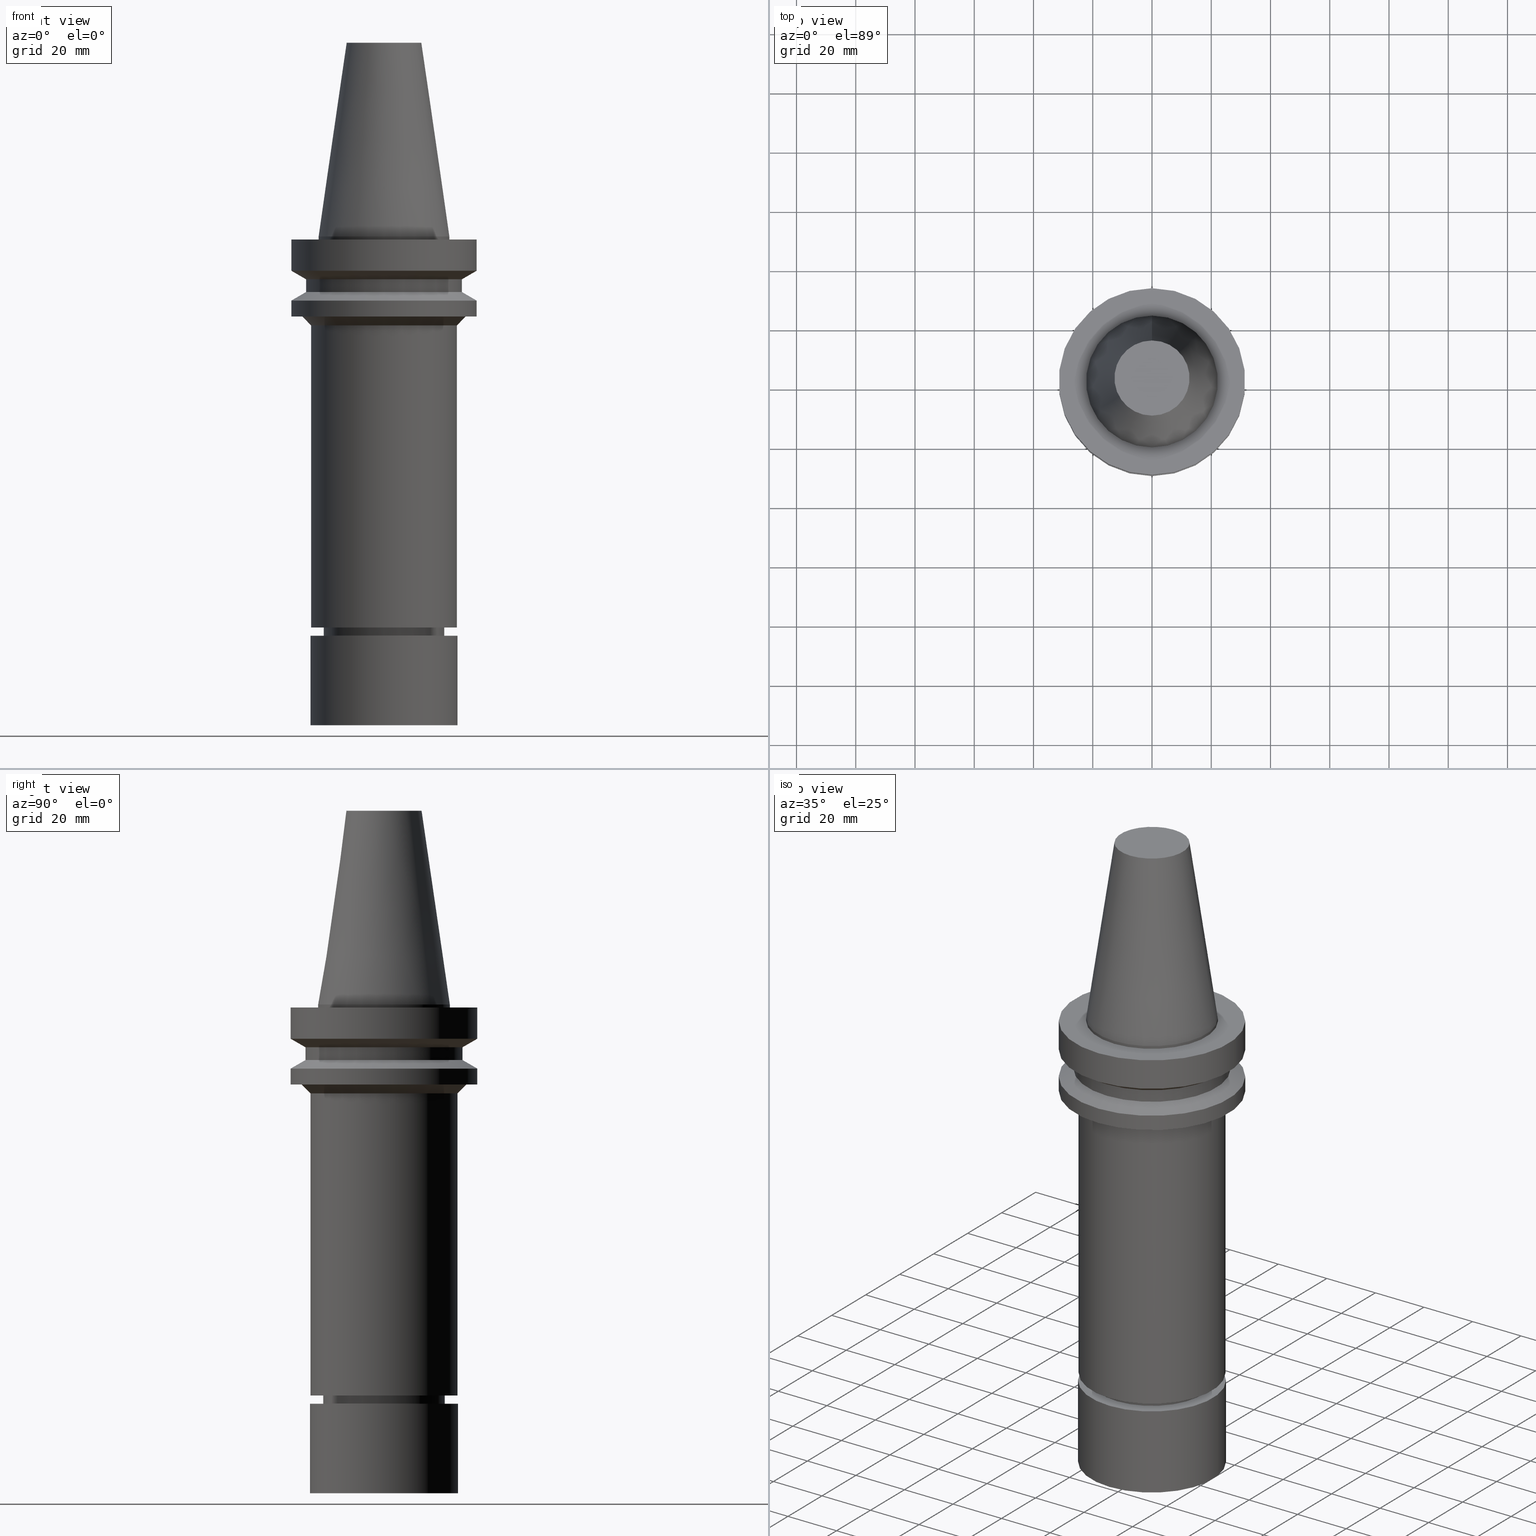
[diagram: canonical four-view strip — front | top / right | iso, engineering-drawing reading convention]
A machine part, canonical four-view strip (front | top / right | iso — engineering-drawing reading convention). The complete STEP part file that produces these views, byte-faithful:
ISO-10303-21;
HEADER;
FILE_DESCRIPTION((''),'1');
FILE_NAME('V:/90_\X2\53D65F9730C730FC30BF\X0\/00_\X2\6DE18DEF30C730FC30BF\X0\/ALL/BBT-BKUS\X2\FF76FF80FF9BFF78FF9E752852A05DE556F3\X0\201801/BBT40-MEGAER/BBT40-MEGAER32-165NL.stp','2018-02-07T02:39:20',(''),(''),'Spatial Interop R21 SP3','Kubotek KeyCreator 2011 V10.0.2 (22737)',' ');
FILE_SCHEMA(('automotive_design'));
ENDSEC;
DATA;
#1=MECHANICAL_DESIGN_GEOMETRIC_PRESENTATION_REPRESENTATION(' ',(#14,#15,#16,#17,#18,#19,#20,#21,#22,#23,#24,#25,#26,#27,#28,#29,#30,#31,#32,#33,#34,#35,#36,#37,#38,#39,#40,#41,#42,#43,#44,#45,#46,#47,#48,#49,#50,#51,#52,#53,#54,#55),#10);
#2=PRODUCT_DEFINITION_CONTEXT('',#56,'design');
#3=APPLICATION_PROTOCOL_DEFINITION('INTERNATIONAL STANDARD','automotive_design',1994,#56);
#4=PRODUCT_CATEGORY_RELATIONSHIP('NONE','NONE',#57,#58);
#5=SHAPE_DEFINITION_REPRESENTATION(#59,#60);
#6=PRODUCT_DEFINITION_CONTEXT('',#61,'design');
#7=APPLICATION_PROTOCOL_DEFINITION('INTERNATIONAL STANDARD','automotive_design',1994,#61);
#8=PRODUCT_CATEGORY_RELATIONSHIP('NONE','NONE',#62,#63);
#9=SHAPE_DEFINITION_REPRESENTATION(#64,#65);
#10= (GEOMETRIC_REPRESENTATION_CONTEXT(3)GLOBAL_UNCERTAINTY_ASSIGNED_CONTEXT((#68))GLOBAL_UNIT_ASSIGNED_CONTEXT((#70,#71,#72))REPRESENTATION_CONTEXT('NONE','WORKSPACE'));
#14=STYLED_ITEM('',(#74),#75);
#15=STYLED_ITEM('',(#76),#77);
#16=STYLED_ITEM('',(#78),#79);
#17=STYLED_ITEM('',(#80,#81),#82);
#18=STYLED_ITEM('',(#83,#84),#85);
#19=STYLED_ITEM('',(#86,#87),#88);
#20=STYLED_ITEM('',(#89),#90);
#21=STYLED_ITEM('',(#91),#92);
#22=STYLED_ITEM('',(#93),#94);
#23=STYLED_ITEM('',(#95,#96),#97);
#24=STYLED_ITEM('',(#98,#99),#100);
#25=STYLED_ITEM('',(#101,#102),#103);
#26=STYLED_ITEM('',(#104,#105),#106);
#27=STYLED_ITEM('',(#107),#108);
#28=STYLED_ITEM('',(#109,#110),#111);
#29=STYLED_ITEM('',(#112),#113);
#30=STYLED_ITEM('',(#114),#115);
#31=STYLED_ITEM('',(#116,#117),#118);
#32=STYLED_ITEM('',(#119,#120),#121);
#33=STYLED_ITEM('',(#122),#123);
#34=STYLED_ITEM('',(#124,#125),#126);
#35=STYLED_ITEM('',(#127),#128);
#36=STYLED_ITEM('',(#129,#130),#131);
#37=STYLED_ITEM('',(#132,#133),#134);
#38=STYLED_ITEM('',(#135),#136);
#39=STYLED_ITEM('',(#137,#138),#139);
#40=STYLED_ITEM('',(#140),#141);
#41=STYLED_ITEM('',(#142),#143);
#42=STYLED_ITEM('',(#144),#145);
#43=STYLED_ITEM('',(#146),#147);
#44=STYLED_ITEM('',(#148,#149),#150);
#45=STYLED_ITEM('',(#151),#152);
#46=STYLED_ITEM('',(#153,#154),#155);
#47=STYLED_ITEM('',(#156,#157),#158);
#48=STYLED_ITEM('',(#159,#160),#161);
#49=STYLED_ITEM('',(#162,#163),#164);
#50=STYLED_ITEM('',(#165,#166),#167);
#51=STYLED_ITEM('',(#168,#169),#170);
#52=STYLED_ITEM('',(#171),#172);
#53=STYLED_ITEM('',(#173,#174),#175);
#54=STYLED_ITEM('',(#176,#177),#178);
#55=STYLED_ITEM('',(#179),#180);
#56=APPLICATION_CONTEXT(' ');
#57=PRODUCT_CATEGORY('part','NONE');
#58=PRODUCT_RELATED_PRODUCT_CATEGORY('detail',' ',(#181));
#59=PRODUCT_DEFINITION_SHAPE('NONE','NONE',#182);
#60=ADVANCED_BREP_SHAPE_REPRESENTATION('Unnamed[1]',(#118,#183),#10);
#61=APPLICATION_CONTEXT(' ');
#62=PRODUCT_CATEGORY('part','NONE');
#63=PRODUCT_RELATED_PRODUCT_CATEGORY('detail',' ',(#184));
#64=PRODUCT_DEFINITION_SHAPE('NONE','NONE',#185);
#65=ADVANCED_BREP_SHAPE_REPRESENTATION('Unnamed[1]',(#158,#186),#10);
#68=UNCERTAINTY_MEASURE_WITH_UNIT(LENGTH_MEASURE(1.0E-006),#70,'','');
#70= (CONVERSION_BASED_UNIT('MILLIMETRE',#189)LENGTH_UNIT()NAMED_UNIT(#192));
#71= (NAMED_UNIT(#194)PLANE_ANGLE_UNIT()SI_UNIT($,.RADIAN.));
#72= (NAMED_UNIT(#194)SOLID_ANGLE_UNIT()SI_UNIT($,.STERADIAN.));
#74=PRESENTATION_STYLE_ASSIGNMENT((#200));
#75=EDGE_CURVE('Unnamed[1]',#201,#201,#202,.T.);
#76=PRESENTATION_STYLE_ASSIGNMENT((#203));
#77=EDGE_CURVE('Unnamed[1]',#204,#204,#205,.T.);
#78=PRESENTATION_STYLE_ASSIGNMENT((#206));
#79=EDGE_CURVE('Unnamed[1]',#207,#207,#208,.T.);
#80=PRESENTATION_STYLE_ASSIGNMENT((#209));
#81=PRESENTATION_STYLE_ASSIGNMENT((#210));
#82=ADVANCED_FACE('Unnamed[1]',(#211),#212,.T.);
#83=PRESENTATION_STYLE_ASSIGNMENT((#213));
#84=PRESENTATION_STYLE_ASSIGNMENT((#214));
#85=ADVANCED_FACE('Unnamed[1]',(#215,#216),#217,.T.);
#86=PRESENTATION_STYLE_ASSIGNMENT((#218));
#87=PRESENTATION_STYLE_ASSIGNMENT((#219));
#88=ADVANCED_FACE('Unnamed[1]',(#220,#221),#222,.T.);
#89=PRESENTATION_STYLE_ASSIGNMENT((#223));
#90=EDGE_CURVE('Unnamed[1]',#224,#224,#225,.T.);
#91=PRESENTATION_STYLE_ASSIGNMENT((#226));
#92=EDGE_CURVE('Unnamed[1]',#227,#227,#228,.T.);
#93=PRESENTATION_STYLE_ASSIGNMENT((#229));
#94=EDGE_CURVE('Unnamed[1]',#230,#230,#231,.T.);
#95=PRESENTATION_STYLE_ASSIGNMENT((#232));
#96=PRESENTATION_STYLE_ASSIGNMENT((#233));
#97=ADVANCED_FACE('Unnamed[1]',(#234,#235),#236,.T.);
#98=PRESENTATION_STYLE_ASSIGNMENT((#237));
#99=PRESENTATION_STYLE_ASSIGNMENT((#238));
#100=ADVANCED_FACE('Unnamed[1]',(#239),#240,.T.);
#101=PRESENTATION_STYLE_ASSIGNMENT((#241));
#102=PRESENTATION_STYLE_ASSIGNMENT((#242));
#103=ADVANCED_FACE('Unnamed[1]',(#243,#244),#245,.T.);
#104=PRESENTATION_STYLE_ASSIGNMENT((#246));
#105=PRESENTATION_STYLE_ASSIGNMENT((#247));
#106=ADVANCED_FACE('Unnamed[1]',(#248),#249,.T.);
#107=PRESENTATION_STYLE_ASSIGNMENT((#250));
#108=EDGE_CURVE('Unnamed[1]',#251,#251,#252,.T.);
#109=PRESENTATION_STYLE_ASSIGNMENT((#253));
#110=PRESENTATION_STYLE_ASSIGNMENT((#254));
#111=ADVANCED_FACE('Unnamed[1]',(#255,#256),#257,.T.);
#112=PRESENTATION_STYLE_ASSIGNMENT((#258));
#113=EDGE_CURVE('Unnamed[1]',#259,#259,#260,.T.);
#114=PRESENTATION_STYLE_ASSIGNMENT((#261));
#115=EDGE_CURVE('Unnamed[1]',#262,#262,#263,.T.);
#116=PRESENTATION_STYLE_ASSIGNMENT((#264));
#117=PRESENTATION_STYLE_ASSIGNMENT((#265));
#118=MANIFOLD_SOLID_BREP('Unnamed[1]',#266);
#119=PRESENTATION_STYLE_ASSIGNMENT((#267));
#120=PRESENTATION_STYLE_ASSIGNMENT((#268));
#121=ADVANCED_FACE('Unnamed[1]',(#269,#270),#271,.T.);
#122=PRESENTATION_STYLE_ASSIGNMENT((#272));
#123=EDGE_CURVE('Unnamed[1]',#273,#273,#274,.T.);
#124=PRESENTATION_STYLE_ASSIGNMENT((#275));
#125=PRESENTATION_STYLE_ASSIGNMENT((#276));
#126=ADVANCED_FACE('Unnamed[1]',(#277),#278,.T.);
#127=PRESENTATION_STYLE_ASSIGNMENT((#279));
#128=EDGE_CURVE('Unnamed[1]',#280,#280,#281,.T.);
#129=PRESENTATION_STYLE_ASSIGNMENT((#282));
#130=PRESENTATION_STYLE_ASSIGNMENT((#283));
#131=ADVANCED_FACE('Unnamed[1]',(#284,#285),#286,.T.);
#132=PRESENTATION_STYLE_ASSIGNMENT((#287));
#133=PRESENTATION_STYLE_ASSIGNMENT((#288));
#134=ADVANCED_FACE('Unnamed[1]',(#289,#290),#291,.T.);
#135=PRESENTATION_STYLE_ASSIGNMENT((#292));
#136=EDGE_CURVE('Unnamed[1]',#293,#293,#294,.T.);
#137=PRESENTATION_STYLE_ASSIGNMENT((#295));
#138=PRESENTATION_STYLE_ASSIGNMENT((#296));
#139=ADVANCED_FACE('Unnamed[1]',(#297,#298),#299,.T.);
#140=PRESENTATION_STYLE_ASSIGNMENT((#300));
#141=EDGE_CURVE('Unnamed[1]',#301,#301,#302,.T.);
#142=PRESENTATION_STYLE_ASSIGNMENT((#303));
#143=EDGE_CURVE('Unnamed[1]',#304,#304,#305,.T.);
#144=PRESENTATION_STYLE_ASSIGNMENT((#306));
#145=EDGE_CURVE('Unnamed[1]',#307,#307,#308,.T.);
#146=PRESENTATION_STYLE_ASSIGNMENT((#309));
#147=EDGE_CURVE('Unnamed[1]',#310,#310,#311,.T.);
#148=PRESENTATION_STYLE_ASSIGNMENT((#312));
#149=PRESENTATION_STYLE_ASSIGNMENT((#313));
#150=ADVANCED_FACE('Unnamed[1]',(#314,#315),#316,.T.);
#151=PRESENTATION_STYLE_ASSIGNMENT((#317));
#152=EDGE_CURVE('Unnamed[1]',#318,#318,#319,.T.);
#153=PRESENTATION_STYLE_ASSIGNMENT((#320));
#154=PRESENTATION_STYLE_ASSIGNMENT((#321));
#155=ADVANCED_FACE('Unnamed[1]',(#322,#323),#324,.T.);
#156=PRESENTATION_STYLE_ASSIGNMENT((#325));
#157=PRESENTATION_STYLE_ASSIGNMENT((#326));
#158=MANIFOLD_SOLID_BREP('Unnamed[1]',#327);
#159=PRESENTATION_STYLE_ASSIGNMENT((#328));
#160=PRESENTATION_STYLE_ASSIGNMENT((#329));
#161=ADVANCED_FACE('Unnamed[1]',(#330,#331),#332,.T.);
#162=PRESENTATION_STYLE_ASSIGNMENT((#333));
#163=PRESENTATION_STYLE_ASSIGNMENT((#334));
#164=ADVANCED_FACE('Unnamed[1]',(#335,#336),#337,.T.);
#165=PRESENTATION_STYLE_ASSIGNMENT((#338));
#166=PRESENTATION_STYLE_ASSIGNMENT((#339));
#167=ADVANCED_FACE('Unnamed[1]',(#340,#341),#342,.F.);
#168=PRESENTATION_STYLE_ASSIGNMENT((#343));
#169=PRESENTATION_STYLE_ASSIGNMENT((#344));
#170=ADVANCED_FACE('Unnamed[1]',(#345,#346),#347,.T.);
#171=PRESENTATION_STYLE_ASSIGNMENT((#348));
#172=EDGE_CURVE('Unnamed[1]',#349,#349,#350,.T.);
#173=PRESENTATION_STYLE_ASSIGNMENT((#351));
#174=PRESENTATION_STYLE_ASSIGNMENT((#352));
#175=ADVANCED_FACE('Unnamed[1]',(#353,#354),#355,.T.);
#176=PRESENTATION_STYLE_ASSIGNMENT((#356));
#177=PRESENTATION_STYLE_ASSIGNMENT((#357));
#178=ADVANCED_FACE('Unnamed[1]',(#358,#359),#360,.T.);
#179=PRESENTATION_STYLE_ASSIGNMENT((#361));
#180=EDGE_CURVE('Unnamed[1]',#362,#362,#363,.T.);
#181=PRODUCT('Unnamed[1]','Unnamed[1]','PART-Unnamed[1]-DESC',(#364));
#182=PRODUCT_DEFINITION('NONE','NONE',#365,#2);
#183=AXIS2_PLACEMENT_3D('',#366,#367,#368);
#184=PRODUCT('Unnamed[1]','Unnamed[1]','PART-Unnamed[1]-DESC',(#369));
#185=PRODUCT_DEFINITION('NONE','NONE',#370,#6);
#186=AXIS2_PLACEMENT_3D('',#371,#372,#373);
#189=LENGTH_MEASURE_WITH_UNIT(LENGTH_MEASURE(1.0),#374);
#192=DIMENSIONAL_EXPONENTS(1.0,0.0,0.0,0.0,0.0,0.0,0.0);
#194=DIMENSIONAL_EXPONENTS(0.0,0.0,0.0,0.0,0.0,0.0,0.0);
#200=CURVE_STYLE('',#375,POSITIVE_LENGTH_MEASURE(1000.0),#376);
#201=VERTEX_POINT('',#377);
#202=CIRCLE('',#378,24.8000000000002);
#203=CURVE_STYLE('',#379,POSITIVE_LENGTH_MEASURE(1000.0),#380);
#204=VERTEX_POINT('',#381);
#205=CIRCLE('',#382,20.499999999991);
#206=CURVE_STYLE('',#383,POSITIVE_LENGTH_MEASURE(1000.0),#384);
#207=VERTEX_POINT('',#385);
#208=CIRCLE('',#386,22.225);
#209=SURFACE_STYLE_USAGE(.BOTH.,#387);
#210=CURVE_STYLE('',#388,POSITIVE_LENGTH_MEASURE(1000.0),#389);
#211=FACE_OUTER_BOUND('',#390,.T.);
#212=PLANE('',#391);
#213=SURFACE_STYLE_USAGE(.BOTH.,#392);
#214=CURVE_STYLE('',#393,POSITIVE_LENGTH_MEASURE(1000.0),#394);
#215=FACE_BOUND('',#395,.T.);
#216=FACE_BOUND('',#396,.T.);
#217=CYLINDRICAL_SURFACE('',#397,31.5);
#218=SURFACE_STYLE_USAGE(.BOTH.,#398);
#219=CURVE_STYLE('',#399,POSITIVE_LENGTH_MEASURE(1000.0),#400);
#220=FACE_BOUND('',#401,.T.);
#221=FACE_OUTER_BOUND('',#402,.T.);
#222=PLANE('',#403);
#223=CURVE_STYLE('',#404,POSITIVE_LENGTH_MEASURE(1000.0),#405);
#224=VERTEX_POINT('',#406);
#225=CIRCLE('',#407,31.4999999999996);
#226=CURVE_STYLE('',#408,POSITIVE_LENGTH_MEASURE(1000.0),#409);
#227=VERTEX_POINT('',#410);
#228=CIRCLE('',#411,24.7999999999997);
#229=CURVE_STYLE('',#412,POSITIVE_LENGTH_MEASURE(1000.0),#413);
#230=VERTEX_POINT('',#414);
#231=CIRCLE('',#415,24.9999999999999);
#232=SURFACE_STYLE_USAGE(.BOTH.,#416);
#233=CURVE_STYLE('',#417,POSITIVE_LENGTH_MEASURE(1000.0),#418);
#234=FACE_OUTER_BOUND('',#419,.T.);
#235=FACE_BOUND('',#420,.T.);
#236=PLANE('',#421);
#237=SURFACE_STYLE_USAGE(.BOTH.,#422);
#238=CURVE_STYLE('',#423,POSITIVE_LENGTH_MEASURE(1000.0),#424);
#239=FACE_OUTER_BOUND('',#425,.T.);
#240=PLANE('',#426);
#241=SURFACE_STYLE_USAGE(.BOTH.,#427);
#242=CURVE_STYLE('',#428,POSITIVE_LENGTH_MEASURE(1000.0),#429);
#243=FACE_BOUND('',#430,.T.);
#244=FACE_BOUND('',#431,.T.);
#245=CONICAL_SURFACE('',#432,17.45625,0.144812498238936);
#246=SURFACE_STYLE_USAGE(.BOTH.,#433);
#247=CURVE_STYLE('',#434,POSITIVE_LENGTH_MEASURE(1000.0),#435);
#248=FACE_OUTER_BOUND('',#436,.T.);
#249=PLANE('',#437);
#250=CURVE_STYLE('',#438,POSITIVE_LENGTH_MEASURE(1000.0),#439);
#251=VERTEX_POINT('',#440);
#252=CIRCLE('',#441,24.9999999999999);
#253=SURFACE_STYLE_USAGE(.BOTH.,#442);
#254=CURVE_STYLE('',#443,POSITIVE_LENGTH_MEASURE(1000.0),#444);
#255=FACE_BOUND('',#445,.T.);
#256=FACE_BOUND('',#446,.T.);
#257=CYLINDRICAL_SURFACE('',#447,24.7999999999999);
#258=CURVE_STYLE('',#448,POSITIVE_LENGTH_MEASURE(1000.0),#449);
#259=VERTEX_POINT('',#450);
#260=CIRCLE('',#451,27.8000000024396);
#261=CURVE_STYLE('',#452,POSITIVE_LENGTH_MEASURE(1000.0),#453);
#262=VERTEX_POINT('',#454);
#263=CIRCLE('',#455,12.6875000000001);
#264=SURFACE_STYLE_USAGE(.BOTH.,#456);
#265=CURVE_STYLE('',#457,POSITIVE_LENGTH_MEASURE(1000.0),#458);
#266=CLOSED_SHELL('',(#126,#103,#155,#97,#85,#139,#175,#150,#131,#167,#170,#111,#88,#164,#134,#161,#178,#106));
#267=SURFACE_STYLE_USAGE(.BOTH.,#459);
#268=CURVE_STYLE('',#460,POSITIVE_LENGTH_MEASURE(1000.0),#461);
#269=FACE_BOUND('',#462,.T.);
#270=FACE_BOUND('',#463,.T.);
#271=CYLINDRICAL_SURFACE('',#464,24.9999999999999);
#272=CURVE_STYLE('',#465,POSITIVE_LENGTH_MEASURE(1000.0),#466);
#273=VERTEX_POINT('',#467);
#274=CIRCLE('',#468,31.5000000000003);
#275=SURFACE_STYLE_USAGE(.BOTH.,#469);
#276=CURVE_STYLE('',#470,POSITIVE_LENGTH_MEASURE(1000.0),#471);
#277=FACE_OUTER_BOUND('',#472,.T.);
#278=PLANE('',#473);
#279=CURVE_STYLE('',#474,POSITIVE_LENGTH_MEASURE(1000.0),#475);
#280=VERTEX_POINT('',#476);
#281=CIRCLE('',#477,18.8999999999996);
#282=SURFACE_STYLE_USAGE(.BOTH.,#478);
#283=CURVE_STYLE('',#479,POSITIVE_LENGTH_MEASURE(1000.0),#480);
#284=FACE_BOUND('',#481,.T.);
#285=FACE_BOUND('',#482,.T.);
#286=CYLINDRICAL_SURFACE('',#483,31.5000000000005);
#287=SURFACE_STYLE_USAGE(.BOTH.,#484);
#288=CURVE_STYLE('',#485,POSITIVE_LENGTH_MEASURE(1000.0),#486);
#289=FACE_BOUND('',#487,.T.);
#290=FACE_BOUND('',#488,.T.);
#291=CONICAL_SURFACE('',#489,20.2500000000005,1.04719755120255);
#292=CURVE_STYLE('',#490,POSITIVE_LENGTH_MEASURE(1000.0),#491);
#293=VERTEX_POINT('',#492);
#294=CIRCLE('',#493,31.5000000000003);
#295=SURFACE_STYLE_USAGE(.BOTH.,#494);
#296=CURVE_STYLE('',#495,POSITIVE_LENGTH_MEASURE(1000.0),#496);
#297=FACE_BOUND('',#497,.T.);
#298=FACE_BOUND('',#498,.T.);
#299=CONICAL_SURFACE('',#499,28.9999999999998,1.04719755119657);
#300=CURVE_STYLE('',#500,POSITIVE_LENGTH_MEASURE(1000.0),#501);
#301=VERTEX_POINT('',#502);
#302=CIRCLE('',#503,26.5);
#303=CURVE_STYLE('',#504,POSITIVE_LENGTH_MEASURE(1000.0),#505);
#304=VERTEX_POINT('',#506);
#305=CIRCLE('',#507,20.5000000000011);
#306=CURVE_STYLE('',#508,POSITIVE_LENGTH_MEASURE(1000.0),#509);
#307=VERTEX_POINT('',#510);
#308=CIRCLE('',#511,22.225);
#309=CURVE_STYLE('',#512,POSITIVE_LENGTH_MEASURE(1000.0),#513);
#310=VERTEX_POINT('',#514);
#311=CIRCLE('',#515,19.9999999999999);
#312=SURFACE_STYLE_USAGE(.BOTH.,#516);
#313=CURVE_STYLE('',#517,POSITIVE_LENGTH_MEASURE(1000.0),#518);
#314=FACE_BOUND('',#519,.T.);
#315=FACE_BOUND('',#520,.T.);
#316=CONICAL_SURFACE('',#521,29.0000000000003,1.04719755119651);
#317=CURVE_STYLE('',#522,POSITIVE_LENGTH_MEASURE(1000.0),#523);
#318=VERTEX_POINT('',#524);
#319=CIRCLE('',#525,20.0);
#320=SURFACE_STYLE_USAGE(.BOTH.,#526);
#321=CURVE_STYLE('',#527,POSITIVE_LENGTH_MEASURE(1000.0),#528);
#322=FACE_BOUND('',#529,.T.);
#323=FACE_BOUND('',#530,.T.);
#324=CYLINDRICAL_SURFACE('',#531,22.225);
#325=SURFACE_STYLE_USAGE(.BOTH.,#532);
#326=CURVE_STYLE('',#533,POSITIVE_LENGTH_MEASURE(1000.0),#534);
#327=CLOSED_SHELL('',(#82,#100,#121));
#328=SURFACE_STYLE_USAGE(.BOTH.,#535);
#329=CURVE_STYLE('',#536,POSITIVE_LENGTH_MEASURE(1000.0),#537);
#330=FACE_BOUND('',#538,.T.);
#331=FACE_BOUND('',#539,.T.);
#332=CYLINDRICAL_SURFACE('',#540,19.9999999999999);
#333=SURFACE_STYLE_USAGE(.BOTH.,#541);
#334=CURVE_STYLE('',#542,POSITIVE_LENGTH_MEASURE(1000.0),#543);
#335=FACE_BOUND('',#544,.T.);
#336=FACE_BOUND('',#545,.T.);
#337=CYLINDRICAL_SURFACE('',#546,20.499999999996);
#338=SURFACE_STYLE_USAGE(.BOTH.,#547);
#339=CURVE_STYLE('',#548,POSITIVE_LENGTH_MEASURE(1000.0),#549);
#340=FACE_BOUND('',#550,.T.);
#341=FACE_BOUND('',#551,.T.);
#342=CONICAL_SURFACE('',#552,29.65000000122,1.57075486116235);
#343=SURFACE_STYLE_USAGE(.BOTH.,#553);
#344=CURVE_STYLE('',#554,POSITIVE_LENGTH_MEASURE(1000.0),#555);
#345=FACE_BOUND('',#556,.T.);
#346=FACE_BOUND('',#557,.T.);
#347=CONICAL_SURFACE('',#558,26.3000000012197,0.785398163374261);
#348=CURVE_STYLE('',#559,POSITIVE_LENGTH_MEASURE(1000.0),#560);
#349=VERTEX_POINT('',#561);
#350=CIRCLE('',#562,31.5000000000006);
#351=SURFACE_STYLE_USAGE(.BOTH.,#563);
#352=CURVE_STYLE('',#564,POSITIVE_LENGTH_MEASURE(1000.0),#565);
#353=FACE_BOUND('',#566,.T.);
#354=FACE_BOUND('',#567,.T.);
#355=CYLINDRICAL_SURFACE('',#568,26.4999999999997);
#356=SURFACE_STYLE_USAGE(.BOTH.,#569);
#357=CURVE_STYLE('',#570,POSITIVE_LENGTH_MEASURE(1000.0),#571);
#358=FACE_BOUND('',#572,.T.);
#359=FACE_BOUND('',#573,.T.);
#360=CONICAL_SURFACE('',#574,19.4499999999998,0.523598775598222);
#361=CURVE_STYLE('',#575,POSITIVE_LENGTH_MEASURE(1000.0),#576);
#362=VERTEX_POINT('',#577);
#363=CIRCLE('',#578,26.4999999999994);
#364=PRODUCT_CONTEXT('',#56,'mechanical');
#365=PRODUCT_DEFINITION_FORMATION_WITH_SPECIFIED_SOURCE(' ','NONE',#181,.NOT_KNOWN.);
#366=CARTESIAN_POINT('',(0.0,0.0,0.0));
#367=DIRECTION('',(0.0,0.0,1.0));
#368=DIRECTION('',(1.0,0.0,0.0));
#369=PRODUCT_CONTEXT('',#61,'mechanical');
#370=PRODUCT_DEFINITION_FORMATION_WITH_SPECIFIED_SOURCE(' ','NONE',#184,.NOT_KNOWN.);
#371=CARTESIAN_POINT('',(0.0,0.0,0.0));
#372=DIRECTION('',(0.0,0.0,1.0));
#373=DIRECTION('',(1.0,0.0,0.0));
#374= (NAMED_UNIT(#192)LENGTH_UNIT()SI_UNIT(.MILLI.,.METRE.));
#375=DRAUGHTING_PRE_DEFINED_CURVE_FONT('continuous');
#376=COLOUR_RGB('',0.0,1.0,0.0);
#377=CARTESIAN_POINT('',(8.08267852271585E-015,24.8000000000003,-132.000157569404));
#378=AXIS2_PLACEMENT_3D('',#580,#581,#582);
#379=DRAUGHTING_PRE_DEFINED_CURVE_FONT('continuous');
#380=COLOUR_RGB('',0.0,1.0,0.0);
#381=CARTESIAN_POINT('',(8.08267852271587E-015,20.4999999999911,-132.000157569404));
#382=AXIS2_PLACEMENT_3D('',#583,#584,#585);
#383=DRAUGHTING_PRE_DEFINED_CURVE_FONT('continuous');
#384=COLOUR_RGB('',0.0,1.0,0.0);
#385=CARTESIAN_POINT('',(1.71319921032766E-029,22.2250000000001,-2.8153873565375E-013));
#386=AXIS2_PLACEMENT_3D('',#586,#587,#588);
#387=SURFACE_SIDE_STYLE('',(#589));
#388=DRAUGHTING_PRE_DEFINED_CURVE_FONT('continuous');
#389=COLOUR_RGB('',0.0,1.0,0.0);
#390=EDGE_LOOP('',(#590));
#391=AXIS2_PLACEMENT_3D('',#591,#592,#593);
#392=SURFACE_SIDE_STYLE('',(#594));
#393=DRAUGHTING_PRE_DEFINED_CURVE_FONT('continuous');
#394=COLOUR_RGB('',0.0,1.0,0.0);
#395=EDGE_LOOP('',(#595));
#396=EDGE_LOOP('',(#596));
#397=AXIS2_PLACEMENT_3D('',#597,#598,#599);
#398=SURFACE_SIDE_STYLE('',(#600));
#399=DRAUGHTING_PRE_DEFINED_CURVE_FONT('continuous');
#400=COLOUR_RGB('',0.0,1.0,0.0);
#401=EDGE_LOOP('',(#601));
#402=EDGE_LOOP('',(#602));
#403=AXIS2_PLACEMENT_3D('',#603,#604,#605);
#404=DRAUGHTING_PRE_DEFINED_CURVE_FONT('continuous');
#405=COLOUR_RGB('',0.0,1.0,0.0);
#406=CARTESIAN_POINT('',(6.12323399573568E-017,31.4999999999997,-0.999999999999825));
#407=AXIS2_PLACEMENT_3D('',#606,#607,#608);
#408=DRAUGHTING_PRE_DEFINED_CURVE_FONT('continuous');
#409=COLOUR_RGB('',0.0,1.0,0.0);
#410=CARTESIAN_POINT('',(1.83697045278272E-015,24.7999999999998,-30.0000041491422));
#411=AXIS2_PLACEMENT_3D('',#609,#610,#611);
#412=DRAUGHTING_PRE_DEFINED_CURVE_FONT('continuous');
#413=COLOUR_RGB('',0.0,1.0,0.0);
#414=CARTESIAN_POINT('',(8.25411942625316E-015,25.0,-134.8));
#415=AXIS2_PLACEMENT_3D('',#612,#613,#614);
#416=SURFACE_SIDE_STYLE('',(#615));
#417=DRAUGHTING_PRE_DEFINED_CURVE_FONT('continuous');
#418=COLOUR_RGB('',0.0,1.0,0.0);
#419=EDGE_LOOP('',(#616));
#420=EDGE_LOOP('',(#617));
#421=AXIS2_PLACEMENT_3D('',#618,#619,#620);
#422=SURFACE_SIDE_STYLE('',(#621));
#423=DRAUGHTING_PRE_DEFINED_CURVE_FONT('continuous');
#424=COLOUR_RGB('',0.0,1.0,0.0);
#425=EDGE_LOOP('',(#622));
#426=AXIS2_PLACEMENT_3D('',#623,#624,#625);
#427=SURFACE_SIDE_STYLE('',(#626));
#428=DRAUGHTING_PRE_DEFINED_CURVE_FONT('continuous');
#429=COLOUR_RGB('',0.0,1.0,0.0);
#430=EDGE_LOOP('',(#627));
#431=EDGE_LOOP('',(#628));
#432=AXIS2_PLACEMENT_3D('',#629,#630,#631);
#433=SURFACE_SIDE_STYLE('',(#632));
#434=DRAUGHTING_PRE_DEFINED_CURVE_FONT('continuous');
#435=COLOUR_RGB('',0.0,1.0,0.0);
#436=EDGE_LOOP('',(#633));
#437=AXIS2_PLACEMENT_3D('',#634,#635,#636);
#438=DRAUGHTING_PRE_DEFINED_CURVE_FONT('continuous');
#439=COLOUR_RGB('',0.0,1.0,0.0);
#440=CARTESIAN_POINT('',(1.01033360929657E-014,25.0,-165.0));
#441=AXIS2_PLACEMENT_3D('',#637,#638,#639);
#442=SURFACE_SIDE_STYLE('',(#640));
#443=DRAUGHTING_PRE_DEFINED_CURVE_FONT('continuous');
#444=COLOUR_RGB('',0.0,1.0,0.0);
#445=EDGE_LOOP('',(#641));
#446=EDGE_LOOP('',(#642));
#447=AXIS2_PLACEMENT_3D('',#643,#644,#645);
#448=DRAUGHTING_PRE_DEFINED_CURVE_FONT('continuous');
#449=COLOUR_RGB('',0.0,1.0,0.0);
#450=CARTESIAN_POINT('',(1.65327343275269E-015,27.8000000024397,-27.0000041465632));
#451=AXIS2_PLACEMENT_3D('',#646,#647,#648);
#452=DRAUGHTING_PRE_DEFINED_CURVE_FONT('continuous');
#453=COLOUR_RGB('',0.0,1.0,0.0);
#454=CARTESIAN_POINT('',(-4.00459503321185E-015,12.6875000000002,65.4000000000001));
#455=AXIS2_PLACEMENT_3D('',#649,#650,#651);
#456=SURFACE_SIDE_STYLE('',(#652));
#457=DRAUGHTING_PRE_DEFINED_CURVE_FONT('continuous');
#458=COLOUR_RGB('',0.0,1.0,0.0);
#459=SURFACE_SIDE_STYLE('',(#653));
#460=DRAUGHTING_PRE_DEFINED_CURVE_FONT('continuous');
#461=COLOUR_RGB('',0.0,1.0,0.0);
#462=EDGE_LOOP('',(#654));
#463=EDGE_LOOP('',(#655));
#464=AXIS2_PLACEMENT_3D('',#656,#657,#658);
#465=DRAUGHTING_PRE_DEFINED_CURVE_FONT('continuous');
#466=COLOUR_RGB('',0.0,1.0,0.0);
#467=CARTESIAN_POINT('',(1.65328282719222E-015,31.5000000000004,-27.0001575694036));
#468=AXIS2_PLACEMENT_3D('',#659,#660,#661);
#469=SURFACE_SIDE_STYLE('',(#662));
#470=DRAUGHTING_PRE_DEFINED_CURVE_FONT('continuous');
#471=COLOUR_RGB('',0.0,1.0,0.0);
#472=EDGE_LOOP('',(#663));
#473=AXIS2_PLACEMENT_3D('',#664,#665,#666);
#474=DRAUGHTING_PRE_DEFINED_CURVE_FONT('continuous');
#475=COLOUR_RGB('',0.0,1.0,0.0);
#476=CARTESIAN_POINT('',(9.42978035343463E-015,18.8999999999997,-154.0));
#477=AXIS2_PLACEMENT_3D('',#667,#668,#669);
#478=SURFACE_SIDE_STYLE('',(#670));
#479=DRAUGHTING_PRE_DEFINED_CURVE_FONT('continuous');
#480=COLOUR_RGB('',0.0,1.0,0.0);
#481=EDGE_LOOP('',(#671));
#482=EDGE_LOOP('',(#672));
#483=AXIS2_PLACEMENT_3D('',#673,#674,#675);
#484=SURFACE_SIDE_STYLE('',(#676));
#485=DRAUGHTING_PRE_DEFINED_CURVE_FONT('continuous');
#486=COLOUR_RGB('',0.0,1.0,0.0);
#487=EDGE_LOOP('',(#677));
#488=EDGE_LOOP('',(#678));
#489=AXIS2_PLACEMENT_3D('',#679,#680,#681);
#490=DRAUGHTING_PRE_DEFINED_CURVE_FONT('continuous');
#491=COLOUR_RGB('',0.0,1.0,0.0);
#492=CARTESIAN_POINT('',(7.08182973902924E-016,31.5000000000004,-11.5655056526664));
#493=AXIS2_PLACEMENT_3D('',#682,#683,#684);
#494=SURFACE_SIDE_STYLE('',(#685));
#495=DRAUGHTING_PRE_DEFINED_CURVE_FONT('continuous');
#496=COLOUR_RGB('',0.0,1.0,0.0);
#497=EDGE_LOOP('',(#686));
#498=EDGE_LOOP('',(#687));
#499=AXIS2_PLACEMENT_3D('',#688,#689,#690);
#500=DRAUGHTING_PRE_DEFINED_CURVE_FONT('continuous');
#501=COLOUR_RGB('',0.0,1.0,0.0);
#502=CARTESIAN_POINT('',(1.1479681728942E-015,26.5,-18.7477430013855));
#503=AXIS2_PLACEMENT_3D('',#691,#692,#693);
#504=DRAUGHTING_PRE_DEFINED_CURVE_FONT('continuous');
#505=COLOUR_RGB('',0.0,1.0,0.0);
#506=CARTESIAN_POINT('',(8.46301247845949E-015,20.5000000000011,-138.211482434801));
#507=AXIS2_PLACEMENT_3D('',#694,#695,#696);
#508=DRAUGHTING_PRE_DEFINED_CURVE_FONT('continuous');
#509=COLOUR_RGB('',0.0,1.0,0.0);
#510=CARTESIAN_POINT('',(6.12323399573622E-017,22.2250000000001,-0.999999999999912));
#511=AXIS2_PLACEMENT_3D('',#697,#698,#699);
#512=DRAUGHTING_PRE_DEFINED_CURVE_FONT('continuous');
#513=COLOUR_RGB('',0.0,1.0,0.0);
#514=CARTESIAN_POINT('',(8.48068873243803E-015,20.0,-138.500157569393));
#515=AXIS2_PLACEMENT_3D('',#700,#701,#702);
#516=SURFACE_SIDE_STYLE('',(#703));
#517=DRAUGHTING_PRE_DEFINED_CURVE_FONT('continuous');
#518=COLOUR_RGB('',0.0,1.0,0.0);
#519=EDGE_LOOP('',(#704));
#520=EDGE_LOOP('',(#705));
#521=AXIS2_PLACEMENT_3D('',#706,#707,#708);
#522=DRAUGHTING_PRE_DEFINED_CURVE_FONT('continuous');
#523=COLOUR_RGB('',0.0,1.0,0.0);
#524=CARTESIAN_POINT('',(9.31311707717483E-015,20.0,-152.094744111673));
#525=AXIS2_PLACEMENT_3D('',#709,#710,#711);
#526=SURFACE_SIDE_STYLE('',(#712));
#527=DRAUGHTING_PRE_DEFINED_CURVE_FONT('continuous');
#528=COLOUR_RGB('',0.0,1.0,0.0);
#529=EDGE_LOOP('',(#713));
#530=EDGE_LOOP('',(#714));
#531=AXIS2_PLACEMENT_3D('',#715,#716,#717);
#532=SURFACE_SIDE_STYLE('',(#718));
#533=DRAUGHTING_PRE_DEFINED_CURVE_FONT('continuous');
#534=COLOUR_RGB('',0.0,1.0,0.0);
#535=SURFACE_SIDE_STYLE('',(#719));
#536=DRAUGHTING_PRE_DEFINED_CURVE_FONT('continuous');
#537=COLOUR_RGB('',0.0,1.0,0.0);
#538=EDGE_LOOP('',(#720));
#539=EDGE_LOOP('',(#721));
#540=AXIS2_PLACEMENT_3D('',#722,#723,#724);
#541=SURFACE_SIDE_STYLE('',(#725));
#542=DRAUGHTING_PRE_DEFINED_CURVE_FONT('continuous');
#543=COLOUR_RGB('',0.0,1.0,0.0);
#544=EDGE_LOOP('',(#726));
#545=EDGE_LOOP('',(#727));
#546=AXIS2_PLACEMENT_3D('',#728,#729,#730);
#547=SURFACE_SIDE_STYLE('',(#731));
#548=DRAUGHTING_PRE_DEFINED_CURVE_FONT('continuous');
#549=COLOUR_RGB('',0.0,1.0,0.0);
#550=EDGE_LOOP('',(#732));
#551=EDGE_LOOP('',(#733));
#552=AXIS2_PLACEMENT_3D('',#734,#735,#736);
#553=SURFACE_SIDE_STYLE('',(#737));
#554=DRAUGHTING_PRE_DEFINED_CURVE_FONT('continuous');
#555=COLOUR_RGB('',0.0,1.0,0.0);
#556=EDGE_LOOP('',(#738));
#557=EDGE_LOOP('',(#739));
#558=AXIS2_PLACEMENT_3D('',#740,#741,#742);
#559=DRAUGHTING_PRE_DEFINED_CURVE_FONT('continuous');
#560=COLOUR_RGB('',0.0,1.0,0.0);
#561=CARTESIAN_POINT('',(1.32473071268174E-015,31.5000000000007,-21.6344943473346));
#562=AXIS2_PLACEMENT_3D('',#743,#744,#745);
#563=SURFACE_SIDE_STYLE('',(#746));
#564=DRAUGHTING_PRE_DEFINED_CURVE_FONT('continuous');
#565=COLOUR_RGB('',0.0,1.0,0.0);
#566=EDGE_LOOP('',(#747));
#567=EDGE_LOOP('',(#748));
#568=AXIS2_PLACEMENT_3D('',#749,#750,#751);
#569=SURFACE_SIDE_STYLE('',(#752));
#570=DRAUGHTING_PRE_DEFINED_CURVE_FONT('continuous');
#571=COLOUR_RGB('',0.0,1.0,0.0);
#572=EDGE_LOOP('',(#753));
#573=EDGE_LOOP('',(#754));
#574=AXIS2_PLACEMENT_3D('',#755,#756,#757);
#575=DRAUGHTING_PRE_DEFINED_CURVE_FONT('continuous');
#576=COLOUR_RGB('',0.0,1.0,0.0);
#577=CARTESIAN_POINT('',(8.8494551369045E-016,26.4999999999995,-14.4522569986152));
#578=AXIS2_PLACEMENT_3D('',#758,#759,#760);
#580=CARTESIAN_POINT('',(8.08267852271585E-015,7.87185539738301E-014,-132.000157569404));
#581=DIRECTION('',(6.12323399573676E-017,7.81354581145529E-018,-1.0));
#582=DIRECTION('',(-5.30559442416852E-033,1.0,7.81354581145529E-018));
#583=CARTESIAN_POINT('',(8.08267852271587E-015,7.87185539738301E-014,-132.000157569404));
#584=DIRECTION('',(6.12323399573677E-017,7.81354581145529E-018,-1.0));
#585=DIRECTION('',(-5.30559442416852E-033,1.0,7.81354581145529E-018));
#586=CARTESIAN_POINT('',(1.74032777401202E-029,7.76871646955422E-014,-2.8421709430404E-013));
#587=DIRECTION('',(6.12323399573677E-017,7.81354581145528E-018,-1.0));
#588=DIRECTION('',(-5.30559442416852E-033,1.0,7.81354581145528E-018));
#589=SURFACE_STYLE_FILL_AREA(#761);
#590=ORIENTED_EDGE('',*,*,#108,.T.);
#591=CARTESIAN_POINT('',(1.01033360929657E-014,12.5,-165.0));
#592=DIRECTION('',(6.12323399573677E-017,1.22464679914735E-016,-1.0));
#593=DIRECTION('',(-1.23259516440783E-032,1.0,1.22464679914735E-016));
#594=SURFACE_STYLE_FILL_AREA(#762);
#595=ORIENTED_EDGE('',*,*,#136,.F.);
#596=ORIENTED_EDGE('',*,*,#90,.T.);
#597=CARTESIAN_POINT('',(3.8470765693014E-016,7.77362552725728E-014,-6.28275282633308));
#598=DIRECTION('',(6.12323399573677E-017,7.8135458114553E-018,-1.0));
#599=DIRECTION('',(-5.30559442416852E-033,1.0,7.8135458114553E-018));
#600=SURFACE_STYLE_FILL_AREA(#763);
#601=ORIENTED_EDGE('',*,*,#77,.F.);
#602=ORIENTED_EDGE('',*,*,#75,.T.);
#603=CARTESIAN_POINT('',(8.08267852271586E-015,22.6499999999957,-132.000157569404));
#604=DIRECTION('',(6.12323399573677E-017,6.62194633551317E-014,-1.0));
#605=DIRECTION('',(-4.05959984468664E-030,1.0,6.62194633551317E-014));
#606=CARTESIAN_POINT('',(6.12323399573572E-017,7.76949782413536E-014,-0.999999999999829));
#607=DIRECTION('',(6.12323399573677E-017,7.81354581145528E-018,-1.0));
#608=DIRECTION('',(-5.30559442416852E-033,1.0,7.81354581145528E-018));
#609=CARTESIAN_POINT('',(1.83697045278272E-015,7.79215711023054E-014,-30.0000041491422));
#610=DIRECTION('',(6.12323399573677E-017,7.8135458114553E-018,-1.0));
#611=DIRECTION('',(-5.30559442416852E-033,1.0,7.81354581145529E-018));
#612=CARTESIAN_POINT('',(8.25411942625316E-015,7.87404306709264E-014,-134.8));
#613=DIRECTION('',(6.12323399573677E-017,7.81354581145529E-018,-1.0));
#614=DIRECTION('',(-5.30559442416852E-033,1.0,7.81354581145529E-018));
#615=SURFACE_STYLE_FILL_AREA(#764);
#616=ORIENTED_EDGE('',*,*,#90,.F.);
#617=ORIENTED_EDGE('',*,*,#145,.T.);
#618=CARTESIAN_POINT('',(6.12323399573595E-017,26.8624999999999,-0.999999999999869));
#619=DIRECTION('',(-6.12323399573677E-017,-9.35138060429241E-015,1.0));
#620=DIRECTION('',(5.77434068963536E-031,-1.0,-9.35138060429241E-015));
#621=SURFACE_STYLE_FILL_AREA(#765);
#622=ORIENTED_EDGE('',*,*,#94,.F.);
#623=CARTESIAN_POINT('',(8.25411942625316E-015,12.5,-134.8));
#624=DIRECTION('',(-6.12323399573677E-017,-1.22464679914735E-016,1.0));
#625=DIRECTION('',(1.23259516440783E-032,-1.0,-1.22464679914735E-016));
#626=SURFACE_STYLE_FILL_AREA(#766);
#627=ORIENTED_EDGE('',*,*,#79,.F.);
#628=ORIENTED_EDGE('',*,*,#115,.T.);
#629=CARTESIAN_POINT('',(-2.00229751660592E-015,7.74316617475076E-014,32.6999999999999));
#630=DIRECTION('',(6.12323399573677E-017,7.81354581145528E-018,-1.0));
#631=DIRECTION('',(-5.30559442416852E-033,1.0,7.81354581145528E-018));
#632=SURFACE_STYLE_FILL_AREA(#767);
#633=ORIENTED_EDGE('',*,*,#128,.T.);
#634=CARTESIAN_POINT('',(9.42978035343462E-015,9.44999999999988,-154.0));
#635=DIRECTION('',(6.12323399573677E-017,-1.3411682667897E-014,-1.0));
#636=DIRECTION('',(8.16401559790235E-031,1.0,-1.3411682667897E-014));
#637=CARTESIAN_POINT('',(1.01033360929657E-014,7.89763997544323E-014,-165.0));
#638=DIRECTION('',(6.12323399573677E-017,7.81354581145529E-018,-1.0));
#639=DIRECTION('',(-5.30559442416852E-033,1.0,7.81354581145528E-018));
#640=SURFACE_STYLE_FILL_AREA(#768);
#641=ORIENTED_EDGE('',*,*,#75,.F.);
#642=ORIENTED_EDGE('',*,*,#92,.T.);
#643=CARTESIAN_POINT('',(4.95982448774928E-015,7.83200625380677E-014,-81.0000808592732));
#644=DIRECTION('',(6.12323399573677E-017,7.81354581145528E-018,-1.0));
#645=DIRECTION('',(-5.30559442416852E-033,1.0,7.81354581145528E-018));
#646=CARTESIAN_POINT('',(1.6532734327527E-015,7.78981304648508E-014,-27.0000041465632));
#647=DIRECTION('',(6.12323399573677E-017,7.81354581145528E-018,-1.0));
#648=DIRECTION('',(-5.30559442416852E-033,1.0,7.81354581145528E-018));
#649=CARTESIAN_POINT('',(-4.00459503321185E-015,7.7176158799473E-014,65.4000000000001));
#650=DIRECTION('',(6.12323399573677E-017,7.81354581145528E-018,-1.0));
#651=DIRECTION('',(-5.30559442416852E-033,1.0,7.81354581145528E-018));
#652=SURFACE_STYLE_FILL_AREA(#769);
#653=SURFACE_STYLE_FILL_AREA(#770);
#654=ORIENTED_EDGE('',*,*,#108,.F.);
#655=ORIENTED_EDGE('',*,*,#94,.T.);
#656=CARTESIAN_POINT('',(9.17872775960941E-015,7.88584152126793E-014,-149.9));
#657=DIRECTION('',(6.12323399573677E-017,7.81354581145529E-018,-1.0));
#658=DIRECTION('',(-5.30559442416852E-033,1.0,7.81354581145528E-018));
#659=CARTESIAN_POINT('',(1.65328282719222E-015,7.78981316636272E-014,-27.0001575694036));
#660=DIRECTION('',(6.12323399573677E-017,7.81354581145529E-018,-1.0));
#661=DIRECTION('',(-5.30559442416852E-033,1.0,7.81354581145529E-018));
#662=SURFACE_STYLE_FILL_AREA(#771);
#663=ORIENTED_EDGE('',*,*,#115,.F.);
#664=CARTESIAN_POINT('',(-4.00459503321185E-015,6.34375000000014,65.4000000000001));
#665=DIRECTION('',(-6.12323399573677E-017,9.97602686800683E-016,1.0));
#666=DIRECTION('',(-5.62583941297938E-032,-1.0,9.97602686800683E-016));
#667=CARTESIAN_POINT('',(9.42978035343463E-015,7.88904507505063E-014,-154.0));
#668=DIRECTION('',(6.12323399573677E-017,7.81354581145529E-018,-1.0));
#669=DIRECTION('',(-5.30559442416852E-033,1.0,7.81354581145529E-018));
#670=SURFACE_STYLE_FILL_AREA(#772);
#671=ORIENTED_EDGE('',*,*,#123,.F.);
#672=ORIENTED_EDGE('',*,*,#172,.T.);
#673=CARTESIAN_POINT('',(1.48900676993698E-015,7.787716923593E-014,-24.3173259583691));
#674=DIRECTION('',(6.12323399573677E-017,7.81354581145529E-018,-1.0));
#675=DIRECTION('',(-5.30559442416852E-033,1.0,7.8135458114553E-018));
#676=SURFACE_STYLE_FILL_AREA(#773);
#677=ORIENTED_EDGE('',*,*,#147,.F.);
#678=ORIENTED_EDGE('',*,*,#143,.T.);
#679=CARTESIAN_POINT('',(8.47185060544876E-015,7.876821423341E-014,-138.355820002097));
#680=DIRECTION('',(-6.12323399573677E-017,-7.81354581145528E-018,1.0));
#681=DIRECTION('',(-5.30559442416852E-033,1.0,7.81354581145528E-018));
#682=CARTESIAN_POINT('',(7.08182973902924E-016,7.7777532303792E-014,-11.5655056526664));
#683=DIRECTION('',(6.12323399573677E-017,7.81354581145529E-018,-1.0));
#684=DIRECTION('',(-5.30559442416852E-033,1.0,7.81354581145529E-018));
#685=SURFACE_STYLE_FILL_AREA(#774);
#686=ORIENTED_EDGE('',*,*,#180,.F.);
#687=ORIENTED_EDGE('',*,*,#136,.T.);
#688=CARTESIAN_POINT('',(7.96564243796687E-016,7.77888101857359E-014,-13.0088813256408));
#689=DIRECTION('',(-6.12323399573677E-017,-7.81354581145529E-018,1.0));
#690=DIRECTION('',(-5.30559442416852E-033,1.0,7.81354581145529E-018));
#691=CARTESIAN_POINT('',(1.1479681728942E-015,7.78336510443449E-014,-18.7477430013855));
#692=DIRECTION('',(6.12323399573677E-017,7.81354581145528E-018,-1.0));
#693=DIRECTION('',(-5.30559442416852E-033,1.0,7.81354581145528E-018));
#694=CARTESIAN_POINT('',(8.46301247845949E-015,7.87670864452157E-014,-138.211482434801));
#695=DIRECTION('',(6.12323399573677E-017,7.81354581145529E-018,-1.0));
#696=DIRECTION('',(-5.30559442416852E-033,1.0,7.81354581145529E-018));
#697=CARTESIAN_POINT('',(6.12323399573624E-017,7.76949782413537E-014,-0.999999999999915));
#698=DIRECTION('',(6.12323399573677E-017,7.81354581145528E-018,-1.0));
#699=DIRECTION('',(-5.30559442416852E-033,1.0,7.81354581145528E-018));
#700=CARTESIAN_POINT('',(8.48068873243803E-015,7.87693420216044E-014,-138.500157569393));
#701=DIRECTION('',(6.12323399573677E-017,7.81354581145529E-018,-1.0));
#702=DIRECTION('',(-5.30559442416852E-033,1.0,7.81354581145529E-018));
#703=SURFACE_STYLE_FILL_AREA(#775);
#704=ORIENTED_EDGE('',*,*,#172,.F.);
#705=ORIENTED_EDGE('',*,*,#141,.T.);
#706=CARTESIAN_POINT('',(1.23634944278797E-015,7.78449289262888E-014,-20.1911186743601));
#707=DIRECTION('',(6.12323399573677E-017,7.81354581145529E-018,-1.0));
#708=DIRECTION('',(-5.30559442416852E-033,1.0,7.81354581145529E-018));
#709=CARTESIAN_POINT('',(9.31311707717483E-015,7.88755639463403E-014,-152.094744111673));
#710=DIRECTION('',(6.12323399573677E-017,7.8135458114553E-018,-1.0));
#711=DIRECTION('',(-5.30559442416852E-033,1.0,7.8135458114553E-018));
#712=SURFACE_STYLE_FILL_AREA(#776);
#713=ORIENTED_EDGE('',*,*,#145,.F.);
#714=ORIENTED_EDGE('',*,*,#79,.T.);
#715=CARTESIAN_POINT('',(3.06161699786908E-017,7.76910714684479E-014,-0.500000000000114));
#716=DIRECTION('',(6.12323399573677E-017,7.81354581145528E-018,-1.0));
#717=DIRECTION('',(-5.30559442416852E-033,1.0,7.81354581145528E-018));
#718=SURFACE_STYLE_FILL_AREA(#777);
#719=SURFACE_STYLE_FILL_AREA(#778);
#720=ORIENTED_EDGE('',*,*,#152,.F.);
#721=ORIENTED_EDGE('',*,*,#147,.T.);
#722=CARTESIAN_POINT('',(8.89690290480643E-015,7.88224529839724E-014,-145.297450840533));
#723=DIRECTION('',(6.12323399573677E-017,7.81354581145528E-018,-1.0));
#724=DIRECTION('',(-5.30559442416852E-033,1.0,7.81354581145528E-018));
#725=SURFACE_STYLE_FILL_AREA(#779);
#726=ORIENTED_EDGE('',*,*,#143,.F.);
#727=ORIENTED_EDGE('',*,*,#77,.T.);
#728=CARTESIAN_POINT('',(8.27284550058768E-015,7.87428202095229E-014,-135.105820002103));
#729=DIRECTION('',(6.12323399573677E-017,7.81354581145529E-018,-1.0));
#730=DIRECTION('',(-5.30559442416852E-033,1.0,7.81354581145529E-018));
#731=SURFACE_STYLE_FILL_AREA(#780);
#732=ORIENTED_EDGE('',*,*,#113,.F.);
#733=ORIENTED_EDGE('',*,*,#123,.T.);
#734=CARTESIAN_POINT('',(1.65327812997246E-015,7.7898131064239E-014,-27.0000808579834));
#735=DIRECTION('',(6.12323399573676E-017,7.81354581145528E-018,-1.0));
#736=DIRECTION('',(-5.30559442416852E-033,1.0,7.81354581145529E-018));
#737=SURFACE_STYLE_FILL_AREA(#781);
#738=ORIENTED_EDGE('',*,*,#92,.F.);
#739=ORIENTED_EDGE('',*,*,#113,.T.);
#740=CARTESIAN_POINT('',(1.74512194276771E-015,7.79098507835781E-014,-28.5000041478527));
#741=DIRECTION('',(-6.12323399573677E-017,-7.81354581145528E-018,1.0));
#742=DIRECTION('',(-5.30559442416852E-033,1.0,7.81354581145528E-018));
#743=CARTESIAN_POINT('',(1.32473071268174E-015,7.78562068082328E-014,-21.6344943473347));
#744=DIRECTION('',(6.12323399573677E-017,7.81354581145528E-018,-1.0));
#745=DIRECTION('',(-5.30559442416852E-033,1.0,7.81354581145528E-018));
#746=SURFACE_STYLE_FILL_AREA(#782);
#747=ORIENTED_EDGE('',*,*,#141,.F.);
#748=ORIENTED_EDGE('',*,*,#180,.T.);
#749=CARTESIAN_POINT('',(1.01645684329232E-015,7.78168695560124E-014,-16.6000000000003));
#750=DIRECTION('',(6.12323399573677E-017,7.81354581145529E-018,-1.0));
#751=DIRECTION('',(-5.30559442416852E-033,1.0,7.81354581145529E-018));
#752=SURFACE_STYLE_FILL_AREA(#783);
#753=ORIENTED_EDGE('',*,*,#128,.F.);
#754=ORIENTED_EDGE('',*,*,#152,.T.);
#755=CARTESIAN_POINT('',(9.37144871530473E-015,7.88830073484233E-014,-153.047372055837));
#756=DIRECTION('',(-6.12323399573677E-017,-7.81354581145529E-018,1.0));
#757=DIRECTION('',(-5.30559442416852E-033,1.0,7.81354581145529E-018));
#758=CARTESIAN_POINT('',(8.84945513690451E-016,7.78000880676798E-014,-14.4522569986152));
#759=DIRECTION('',(6.12323399573677E-017,7.81354581145529E-018,-1.0));
#760=DIRECTION('',(-5.30559442416852E-033,1.0,7.81354581145529E-018));
#761=FILL_AREA_STYLE('',(#784));
#762=FILL_AREA_STYLE('',(#785));
#763=FILL_AREA_STYLE('',(#786));
#764=FILL_AREA_STYLE('',(#787));
#765=FILL_AREA_STYLE('',(#788));
#766=FILL_AREA_STYLE('',(#789));
#767=FILL_AREA_STYLE('',(#790));
#768=FILL_AREA_STYLE('',(#791));
#769=FILL_AREA_STYLE('',(#792));
#770=FILL_AREA_STYLE('',(#793));
#771=FILL_AREA_STYLE('',(#794));
#772=FILL_AREA_STYLE('',(#795));
#773=FILL_AREA_STYLE('',(#796));
#774=FILL_AREA_STYLE('',(#797));
#775=FILL_AREA_STYLE('',(#798));
#776=FILL_AREA_STYLE('',(#799));
#777=FILL_AREA_STYLE('',(#800));
#778=FILL_AREA_STYLE('',(#801));
#779=FILL_AREA_STYLE('',(#802));
#780=FILL_AREA_STYLE('',(#803));
#781=FILL_AREA_STYLE('',(#804));
#782=FILL_AREA_STYLE('',(#805));
#783=FILL_AREA_STYLE('',(#806));
#784=FILL_AREA_STYLE_COLOUR('',#807);
#785=FILL_AREA_STYLE_COLOUR('',#808);
#786=FILL_AREA_STYLE_COLOUR('',#809);
#787=FILL_AREA_STYLE_COLOUR('',#810);
#788=FILL_AREA_STYLE_COLOUR('',#811);
#789=FILL_AREA_STYLE_COLOUR('',#812);
#790=FILL_AREA_STYLE_COLOUR('',#813);
#791=FILL_AREA_STYLE_COLOUR('',#814);
#792=FILL_AREA_STYLE_COLOUR('',#815);
#793=FILL_AREA_STYLE_COLOUR('',#816);
#794=FILL_AREA_STYLE_COLOUR('',#817);
#795=FILL_AREA_STYLE_COLOUR('',#818);
#796=FILL_AREA_STYLE_COLOUR('',#819);
#797=FILL_AREA_STYLE_COLOUR('',#820);
#798=FILL_AREA_STYLE_COLOUR('',#821);
#799=FILL_AREA_STYLE_COLOUR('',#822);
#800=FILL_AREA_STYLE_COLOUR('',#823);
#801=FILL_AREA_STYLE_COLOUR('',#824);
#802=FILL_AREA_STYLE_COLOUR('',#825);
#803=FILL_AREA_STYLE_COLOUR('',#826);
#804=FILL_AREA_STYLE_COLOUR('',#827);
#805=FILL_AREA_STYLE_COLOUR('',#828);
#806=FILL_AREA_STYLE_COLOUR('',#829);
#807=COLOUR_RGB('',0.0,1.0,0.0);
#808=COLOUR_RGB('',0.0,1.0,0.0);
#809=COLOUR_RGB('',0.0,1.0,0.0);
#810=COLOUR_RGB('',0.0,1.0,0.0);
#811=COLOUR_RGB('',0.0,1.0,0.0);
#812=COLOUR_RGB('',0.0,1.0,0.0);
#813=COLOUR_RGB('',0.0,1.0,0.0);
#814=COLOUR_RGB('',0.0,1.0,0.0);
#815=COLOUR_RGB('',0.0,1.0,0.0);
#816=COLOUR_RGB('',0.0,1.0,0.0);
#817=COLOUR_RGB('',0.0,1.0,0.0);
#818=COLOUR_RGB('',0.0,1.0,0.0);
#819=COLOUR_RGB('',0.0,1.0,0.0);
#820=COLOUR_RGB('',0.0,1.0,0.0);
#821=COLOUR_RGB('',0.0,1.0,0.0);
#822=COLOUR_RGB('',0.0,1.0,0.0);
#823=COLOUR_RGB('',0.0,1.0,0.0);
#824=COLOUR_RGB('',0.0,1.0,0.0);
#825=COLOUR_RGB('',0.0,1.0,0.0);
#826=COLOUR_RGB('',0.0,1.0,0.0);
#827=COLOUR_RGB('',0.0,1.0,0.0);
#828=COLOUR_RGB('',0.0,1.0,0.0);
#829=COLOUR_RGB('',0.0,1.0,0.0);
ENDSEC;
END-ISO-10303-21;
